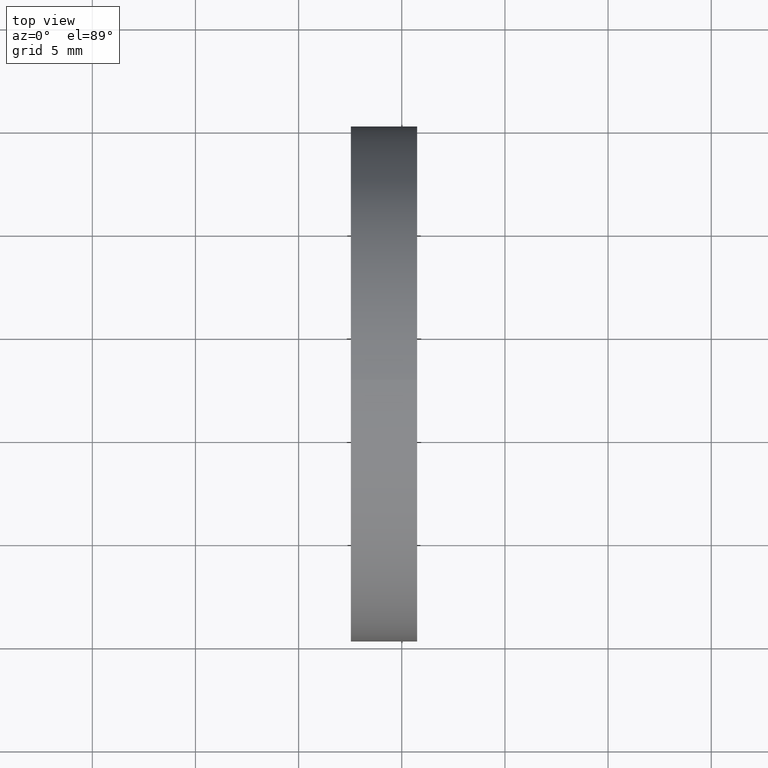
[diagram: clean part render]
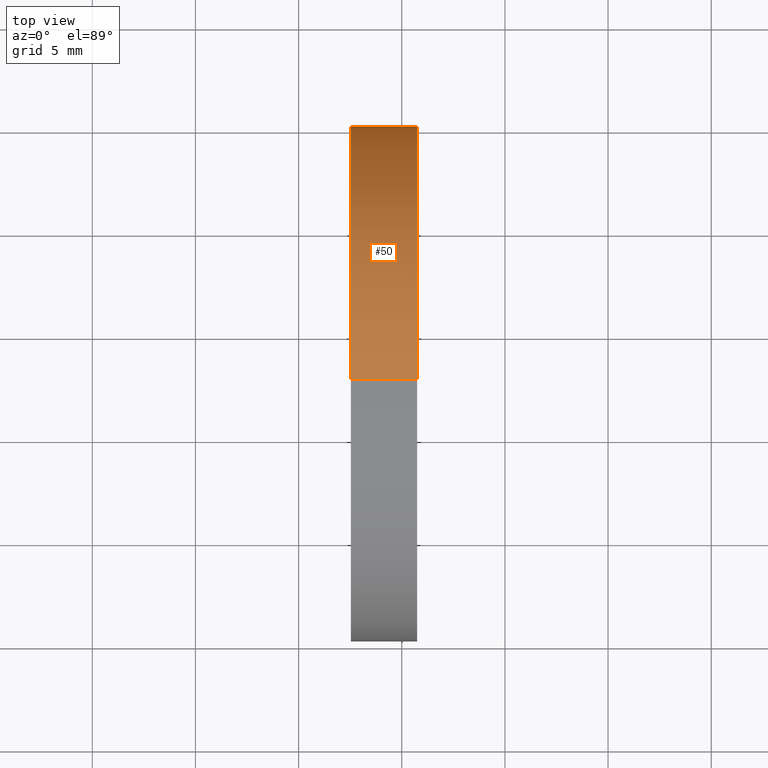
[diagram: same view with one face highlighted and labeled with its STEP entity id]
A machine part, top view. The second image highlights one B-rep face of the part: STEP entity #50.
In plain terms, the highlighted cylindrical surface (partial cylindrical patch) has radius 12.5 mm, axis along (-1, -0, -0).
Its self-contained STEP definition (entity closure, byte-faithful):
#1 = DIRECTION ( 'NONE',  ( -1.000000000000000000, -0.0000000000000000000, -0.0000000000000000000 ) ) ;
#2 = DIRECTION ( 'NONE',  ( -1.000000000000000000, -0.0000000000000000000, -0.0000000000000000000 ) ) ;
#5 = VECTOR ( 'NONE', #2, 1000.000000000000000 ) ;
#6 = CARTESIAN_POINT ( 'NONE',  ( 57.53233705252611700, 32.61076812922678400, 12.49999999999999600 ) ) ;
#8 = AXIS2_PLACEMENT_3D ( 'NONE', #47, #74, #85 ) ;
#16 = DIRECTION ( 'NONE',  ( 0.0000000000000000000, 0.0000000000000000000, 1.000000000000000000 ) ) ;
#23 = EDGE_CURVE ( 'NONE', #34, #131, #112, .T. ) ;
#27 = CARTESIAN_POINT ( 'NONE',  ( 60.74492795786347400, 32.61076812922678400, 12.49999999999999600 ) ) ;
#29 = VERTEX_POINT ( 'NONE', #56 ) ;
#30 = CARTESIAN_POINT ( 'NONE',  ( 56.10091507999716500, 32.61076812922678400, 12.49999999999999600 ) ) ;
#34 = VERTEX_POINT ( 'NONE', #27 ) ;
#43 = EDGE_LOOP ( 'NONE', ( #99, #64, #122, #120 ) ) ;
#45 = EDGE_CURVE ( 'NONE', #93, #29, #129, .T. ) ;
#46 = CARTESIAN_POINT ( 'NONE',  ( 57.53233705252611700, 32.61076812922678400, 0.0000000000000000000 ) ) ;
#47 = CARTESIAN_POINT ( 'NONE',  ( 60.74492795786346700, 32.61076812922678400, 0.0000000000000000000 ) ) ;
#50 = ADVANCED_FACE ( 'NONE', ( #140 ), #160, .T. ) ;
#56 = CARTESIAN_POINT ( 'NONE',  ( 57.53233705252611700, 32.61076812922678400, -12.49999999999999600 ) ) ;
#57 = CARTESIAN_POINT ( 'NONE',  ( 56.10091507999716500, 32.61076812922678400, -12.49999999999999600 ) ) ;
#64 = ORIENTED_EDGE ( 'NONE', *, *, #45, .T. ) ;
#66 = AXIS2_PLACEMENT_3D ( 'NONE', #46, #137, #16 ) ;
#69 = AXIS2_PLACEMENT_3D ( 'NONE', #111, #1, #158 ) ;
#74 = DIRECTION ( 'NONE',  ( -1.000000000000000000, -0.0000000000000000000, -0.0000000000000000000 ) ) ;
#85 = DIRECTION ( 'NONE',  ( 0.0000000000000000000, 0.0000000000000000000, 1.000000000000000000 ) ) ;
#93 = VERTEX_POINT ( 'NONE', #163 ) ;
#95 = CIRCLE ( 'NONE', #66, 12.49999999999999600 ) ;
#96 = DIRECTION ( 'NONE',  ( -1.000000000000000000, -0.0000000000000000000, -0.0000000000000000000 ) ) ;
#99 = ORIENTED_EDGE ( 'NONE', *, *, #133, .T. ) ;
#111 = CARTESIAN_POINT ( 'NONE',  ( 56.10091507999716500, 32.61076812922678400, 0.0000000000000000000 ) ) ;
#112 = LINE ( 'NONE', #30, #118 ) ;
#118 = VECTOR ( 'NONE', #96, 1000.000000000000000 ) ;
#120 = ORIENTED_EDGE ( 'NONE', *, *, #23, .F. ) ;
#122 = ORIENTED_EDGE ( 'NONE', *, *, #155, .F. ) ;
#129 = LINE ( 'NONE', #57, #5 ) ;
#131 = VERTEX_POINT ( 'NONE', #6 ) ;
#133 = EDGE_CURVE ( 'NONE', #34, #93, #146, .T. ) ;
#137 = DIRECTION ( 'NONE',  ( -1.000000000000000000, -0.0000000000000000000, -0.0000000000000000000 ) ) ;
#140 = FACE_OUTER_BOUND ( 'NONE', #43, .T. ) ;
#146 = CIRCLE ( 'NONE', #8, 12.49999999999999600 ) ;
#155 = EDGE_CURVE ( 'NONE', #131, #29, #95, .T. ) ;
#158 = DIRECTION ( 'NONE',  ( 0.0000000000000000000, 0.0000000000000000000, 1.000000000000000000 ) ) ;
#160 = CYLINDRICAL_SURFACE ( 'NONE', #69, 12.49999999999999600 ) ;
#163 = CARTESIAN_POINT ( 'NONE',  ( 60.74492795786347400, 32.61076812922678400, -12.49999999999999600 ) ) ;